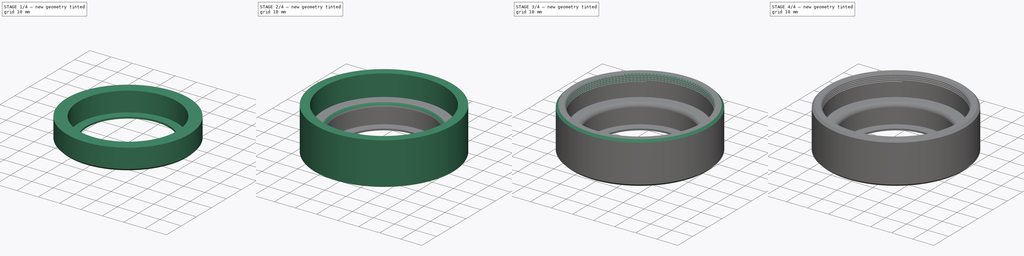
[diagram: build sequence overview — one tinted view per stage of 4, left to right]
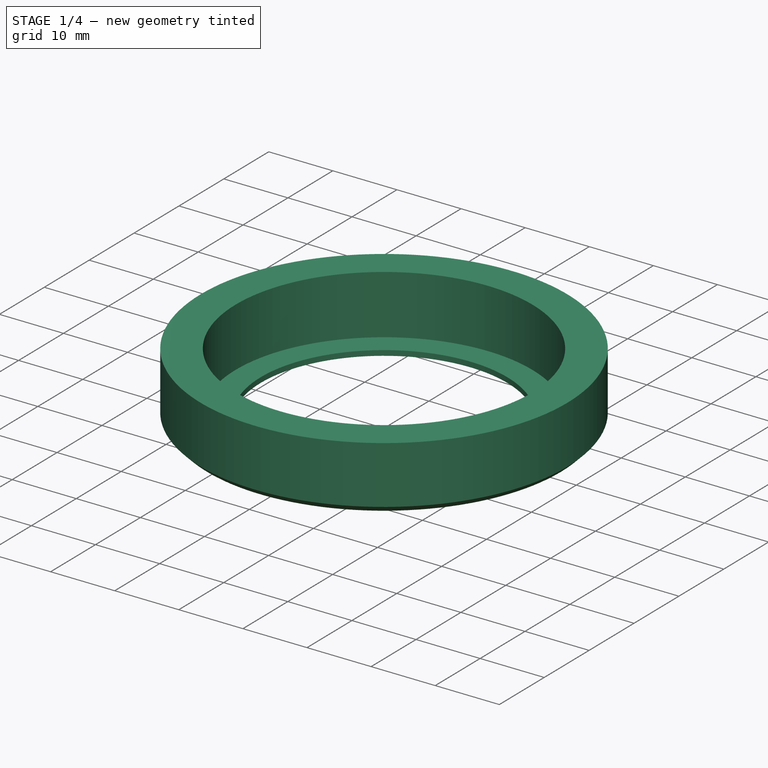
[diagram: stage 1 of 4 — iso view after this stage's code; geometry added in this stage tinted green]
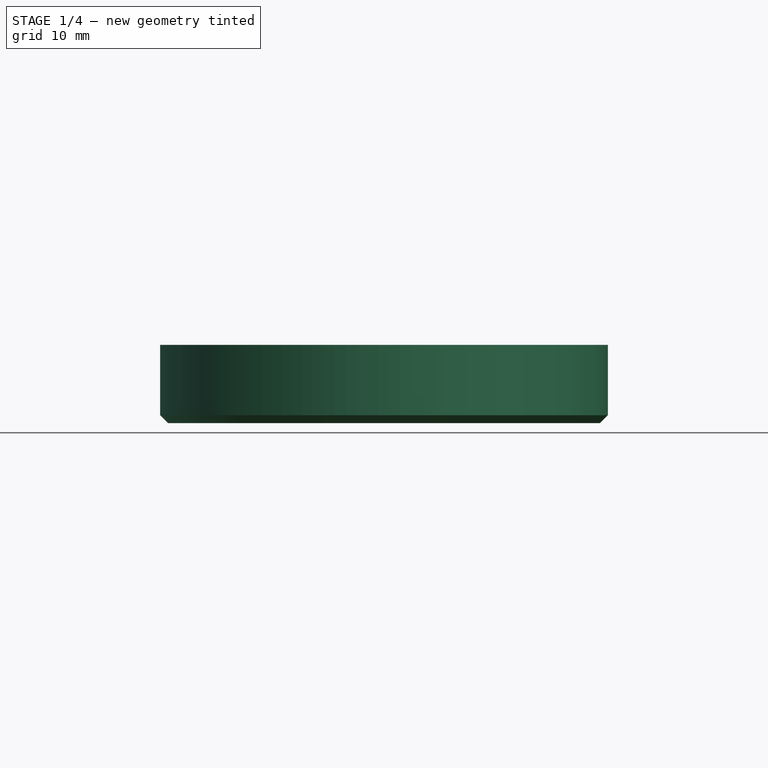
[diagram: stage 1 of 4 — front view after this stage's code; geometry added in this stage tinted green]
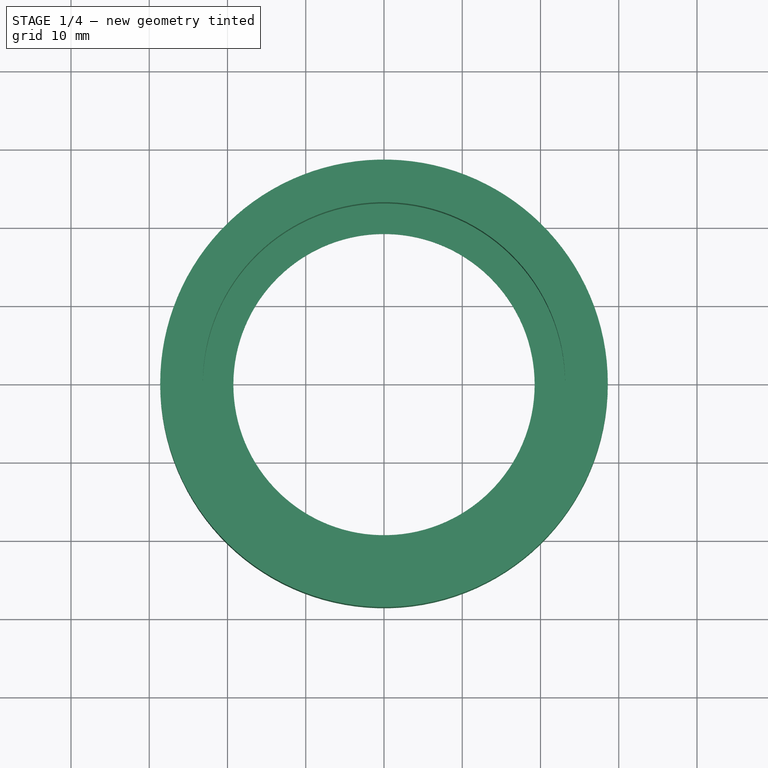
[diagram: stage 1 of 4 — top view after this stage's code; geometry added in this stage tinted green]
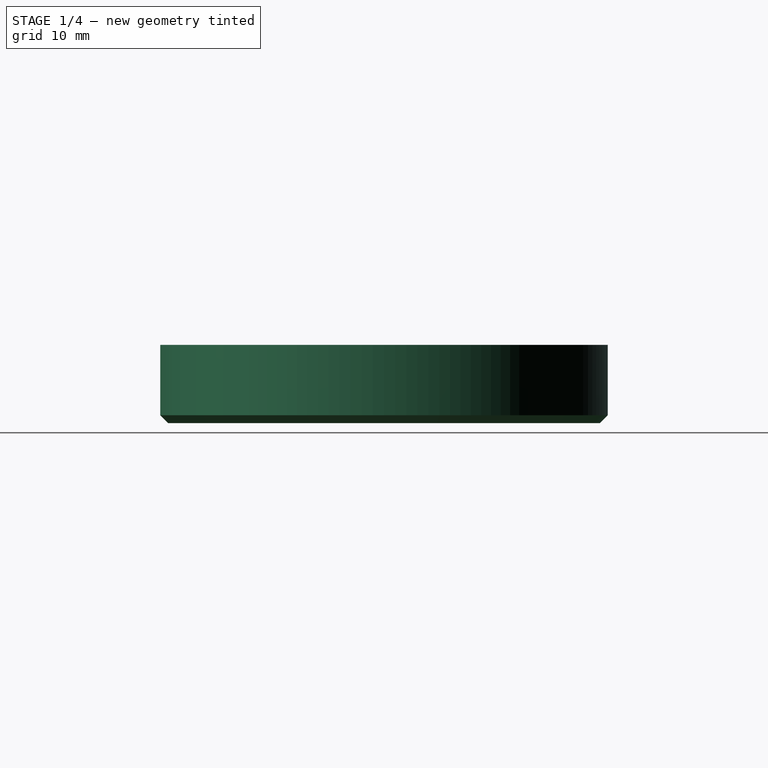
[diagram: stage 1 of 4 — right view after this stage's code; geometry added in this stage tinted green]
FCSTD DOCUMENT  (FreeCAD 2021.1015R24301 +3962 (Git))
Label: EOS2Microscope
License: All rights reserved
LicenseURL: http://en.wikipedia.org/wiki/All_rights_reserved
objects: Sketcher::SketchObject×4, PartDesign::Chamfer×4, PartDesign::Revolution×2, PartDesign::Body×2, PartDesign::SubtractiveHelix×1, PartDesign::Pocket×1, Part::SubShapeBinder×1, PartDesign::Fillet×1
note: 34 computed .brp shape members not serialized (recipe doc carries the construction recipe); baked Part::Feature solids carry a one-line shape summary decoded from their .brp

FEATURE [Part::SubShapeBinder] Import  label="Import(Pocket)"
  BindCopyOnChange = 0
  BindMode = 0
  ClaimChildren = false
  Context = -> Body001 [Import.]
  FillStyle = 0
  Fuse = false
  MakeFace = false
  PartialLoad = false
  Relative = true
  Support = -> [Body[Pocket.]]
  _Version = 7
FEATURE [Sketcher::SketchObject] Sketch004
  ExternalGeometry = -> [Import]
  FullyConstrained = true
  MapMode = 5
  Placement = pos=(0,0,0) rot=(1,0,0;1.5708rad)
  Support = -> [XZ_Plane001]
  expr: Constraints[13] = 38.5 / 2
  expr: Constraints[15] = 46.3 / 2
  sketch-geometry (6):
    g0: LineSegment StartX=19.25 StartY=0 StartZ=0 EndX=19.25 EndY=0.8 EndZ=0
    g1: LineSegment StartX=19.25 StartY=0.8 StartZ=0 EndX=23.15 EndY=0.8 EndZ=0
    g2: LineSegment StartX=23.15 StartY=0.8 StartZ=0 EndX=23.15 EndY=10 EndZ=0
    g3: LineSegment StartX=23.15 StartY=10 StartZ=0 EndX=28.6 EndY=10 EndZ=0
    g4: LineSegment StartX=28.6 StartY=10 StartZ=0 EndX=28.6 EndY=0 EndZ=0
    g5: LineSegment StartX=28.6 StartY=0 StartZ=0 EndX=19.25 EndY=0 EndZ=0
  constraints (18):
    c: PointOnObject(g0,g-3)
    c: Vertical(g0)
    c: Coincident(g1,g0)
    c: Horizontal(g1)
    c: Coincident(g2,g1)
    c: Vertical(g2)
    c: Coincident(g3,g2)
    c: Horizontal(g3)
    c: Coincident(g4,g3)
    c: PointOnObject(g4,g-3)
    c: Vertical(g4)
    c: Coincident(g5,g4)
    c: Coincident(g5,g0)
    c: DistanceX(g-1,g0) = 19.25
    c: DistanceX(g4,g-3) = 0.2
    c: DistanceX(g-1,g1) = 23.15
    c: DistanceY(g0,g0) = 0.8
    c: DistanceY(g4,g4) = 10
FEATURE [PartDesign::Revolution] Revolution001
  Angle = 360
  Axis = (0,-2e-16,1)
  Base = (0,0,0)
  ClaimChildren = false
  Fit = 0
  FitJoin = 0
  InnerFit = 0
  InnerFitJoin = 0
  NewSolid = false
  Placement = pos=(0,0,0) rot=(1,0,0;1.5708rad)
  Profile = -> Sketch004
  ReferenceAxis = -> Sketch004 [V_Axis]
  Reversed = true
  Suppress = false
  _ProfileBasedVersion = 1
FEATURE [PartDesign::Chamfer] Chamfer002
  Angle = 45
  Base = -> Revolution001 [Edge8]
  BaseFeature = -> Revolution001
  ChamferType = 0
  FlipDirection = false
  NewSolid = false
  Placement = pos=(0,0,0) rot=(1,0,0;1.5708rad)
  Size = 1
  Size2 = 1
  SupportTransform = false
  Suppress = false
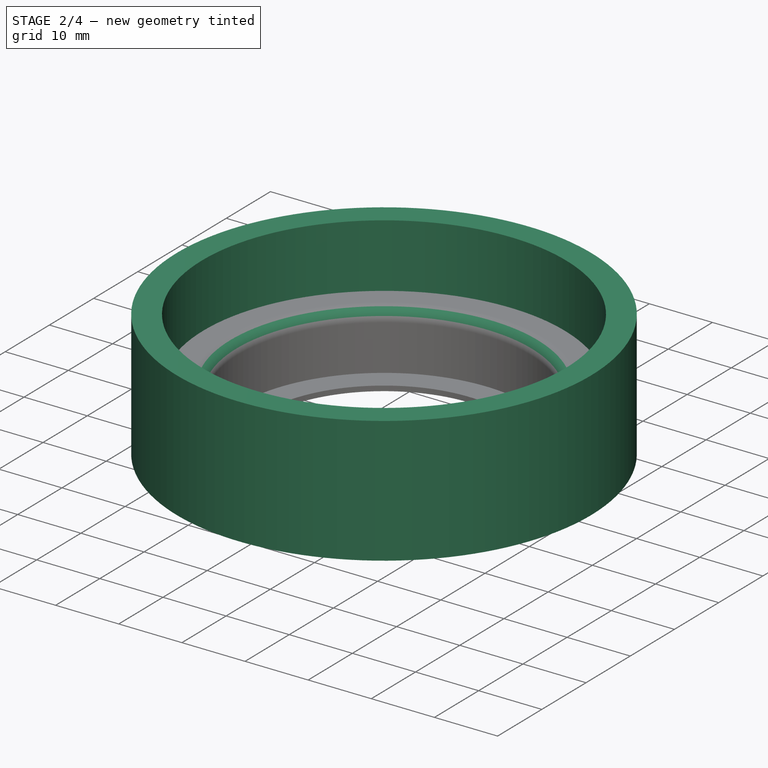
[diagram: stage 2 of 4 — iso view after this stage's code; geometry added in this stage tinted green]
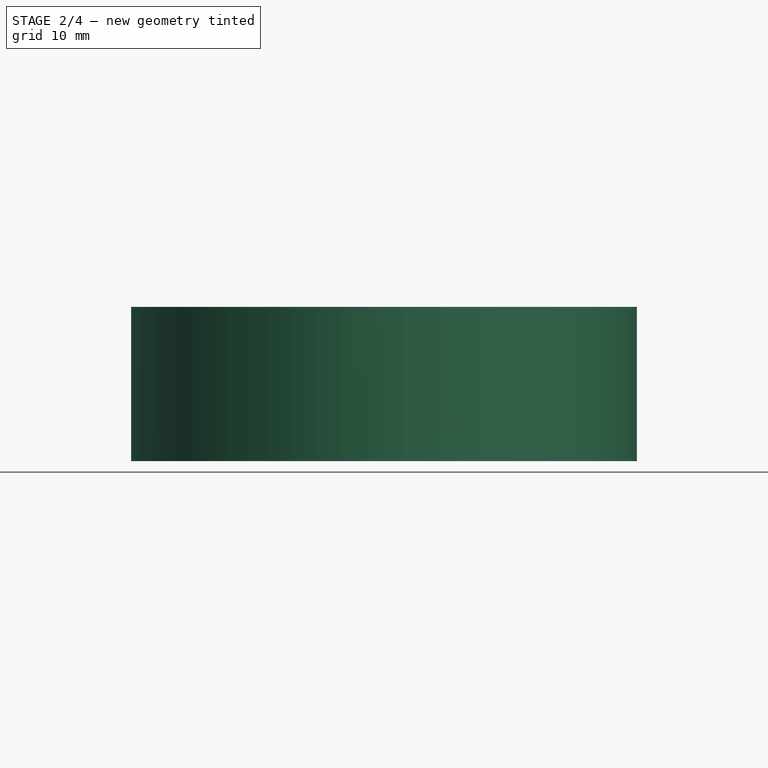
[diagram: stage 2 of 4 — front view after this stage's code; geometry added in this stage tinted green]
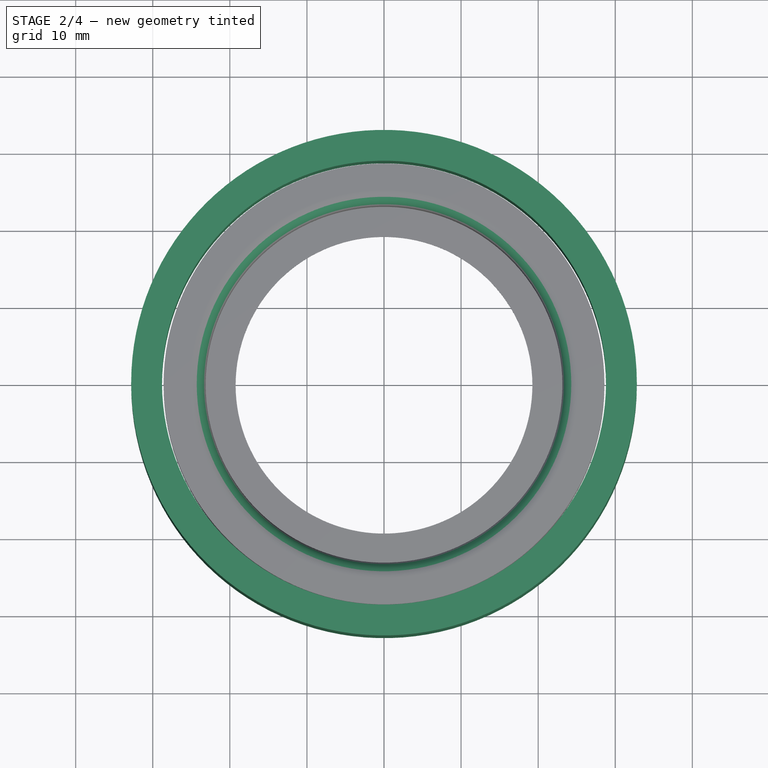
[diagram: stage 2 of 4 — top view after this stage's code; geometry added in this stage tinted green]
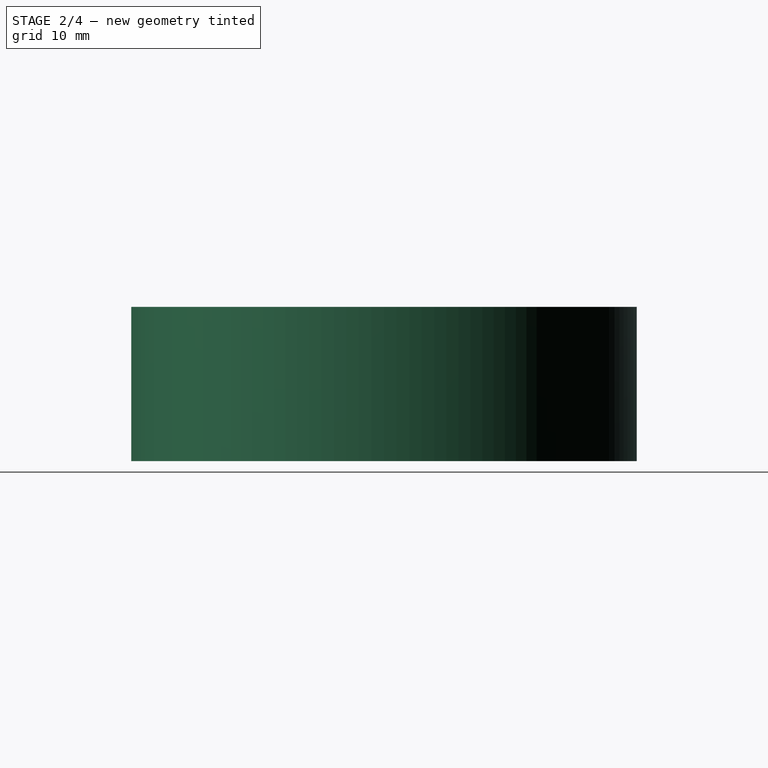
[diagram: stage 2 of 4 — right view after this stage's code; geometry added in this stage tinted green]
FEATURE [Sketcher::SketchObject] Sketch
  FullyConstrained = false
  MapMode = 5
  Placement = pos=(0,0,0) rot=(1,0,0;1.5708rad)
  Support = -> [XZ_Plane]
  expr: Constraints[11] = 57.6 / 2
  expr: Constraints[19] = 38.5 / 2
  expr: Constraints[21] = 46.5 / 2
  sketch-geometry (9):
    g0: LineSegment StartX=28.8 StartY=20 StartZ=0 EndX=28.8 EndY=0 EndZ=0
    g1: LineSegment [constr] StartX=28.8 StartY=10 StartZ=0 EndX=23.25 EndY=10 EndZ=0
    g2: LineSegment [constr] StartX=23.25 StartY=10 StartZ=0 EndX=23.25 EndY=1 EndZ=0
    g3: LineSegment [constr] StartX=23.25 StartY=1 StartZ=0 EndX=19.25 EndY=1 EndZ=0
    g4: LineSegment [constr] StartX=19.25 StartY=1 StartZ=0 EndX=19.25 EndY=0 EndZ=0
    g5: LineSegment [constr] StartX=19.25 StartY=0 StartZ=0 EndX=32.8 EndY=0 EndZ=0
    g6: LineSegment StartX=32.8 StartY=0 StartZ=0 EndX=32.8 EndY=20 EndZ=0
    g7: LineSegment StartX=32.8 StartY=20 StartZ=0 EndX=28.8 EndY=20 EndZ=0
    g8: LineSegment StartX=28.8 StartY=0 StartZ=0 EndX=32.8 EndY=0 EndZ=0
  constraints (26):
    c: Vertical(g0)
    c: Coincident(g2,g1)
    c: Coincident(g3,g2)
    c: Coincident(g4,g3)
    c: Coincident(g5,g4)
    c: Coincident(g6,g5)
    c: Vertical(g6)
    c: Coincident(g7,g6)
    c: Coincident(g7,g0)
    c: Horizontal(g7)
    c: DistanceY(g4,g0) = 20
    c: DistanceX(g-1,g0) = 28.8
    c: DistanceX(g7,g7) = 4
    c: Horizontal(g5)
    c: Horizontal(g1)
    c: Vertical(g4)
    c: Horizontal(g3)
    c: Vertical(g2)
    c: Horizontal(g4,g-1)
    c: DistanceX(g-1,g4) = 19.25
    c: DistanceY(g4,g4) = 1
    c: DistanceX(g-1,g1) = 23.25
    c: PointOnObject(g8,g5)
    c: Coincident(g8,g6)
    c: Coincident(g0,g8)
    c: DistanceY(g1) = 10
FEATURE [PartDesign::Revolution] Revolution
  Angle = 360
  Axis = (0,-2e-16,1)
  Base = (0,0,0)
  ClaimChildren = false
  Fit = 0
  FitJoin = 0
  InnerFit = 0
  InnerFitJoin = 0
  NewSolid = false
  Placement = pos=(0,0,0) rot=(1,0,0;1.5708rad)
  Profile = -> Sketch
  ReferenceAxis = -> Sketch [V_Axis]
  Reversed = true
  Suppress = false
  _ProfileBasedVersion = 1
FEATURE [PartDesign::Body] Body
  AutoGroupSolids = false
  ExportMode = 0
  Group = -> [Sketch,Revolution,Chamfer,Sketch001,SubtractiveHelix,Chamfer001,Sketch003,Pocket,Chamfer003]
  Origin = -> Origin
  Tip = -> Chamfer003
  _ExportChildren = -> [Revolution,Chamfer,SubtractiveHelix,Chamfer001,Pocket,Chamfer003]
  _GroupVersion = 1
FEATURE [PartDesign::Fillet] Fillet
  Base = -> Chamfer002 [Edge6]
  BaseFeature = -> Chamfer002
  NewSolid = false
  Placement = pos=(0,0,0) rot=(1,0,0;1.5708rad)
  Radius = 2
  SupportTransform = false
  Suppress = false
FEATURE [PartDesign::Body] Body001
  AutoGroupSolids = false
  ExportMode = 0
  Group = -> [Sketch004,Import,Revolution001,Chamfer002,Fillet]
  Origin = -> Origin001
  Tip = -> Fillet
  _ExportChildren = -> [Import,Revolution001,Chamfer002,Fillet]
  _GroupVersion = 1
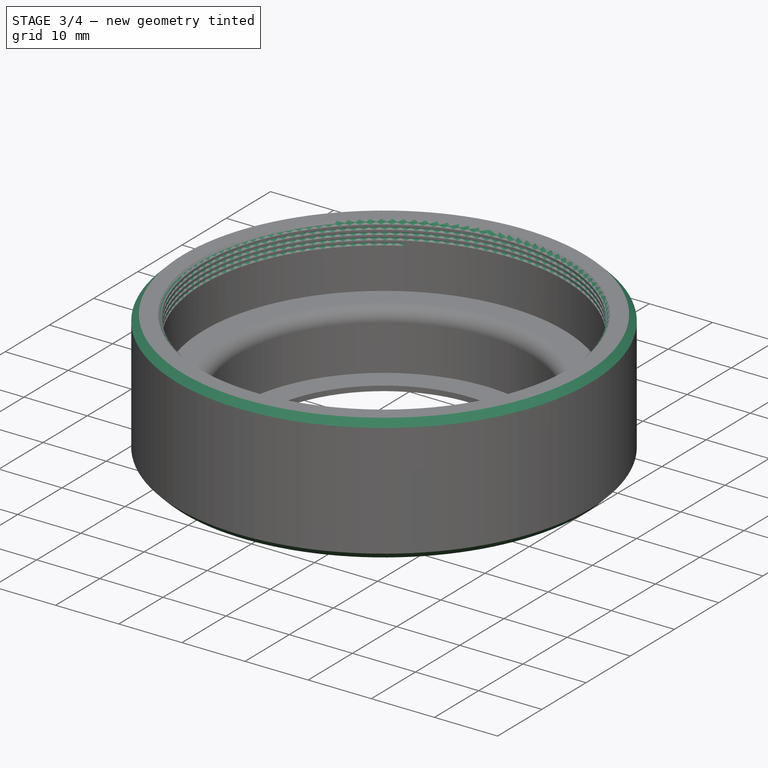
[diagram: stage 3 of 4 — iso view after this stage's code; geometry added in this stage tinted green]
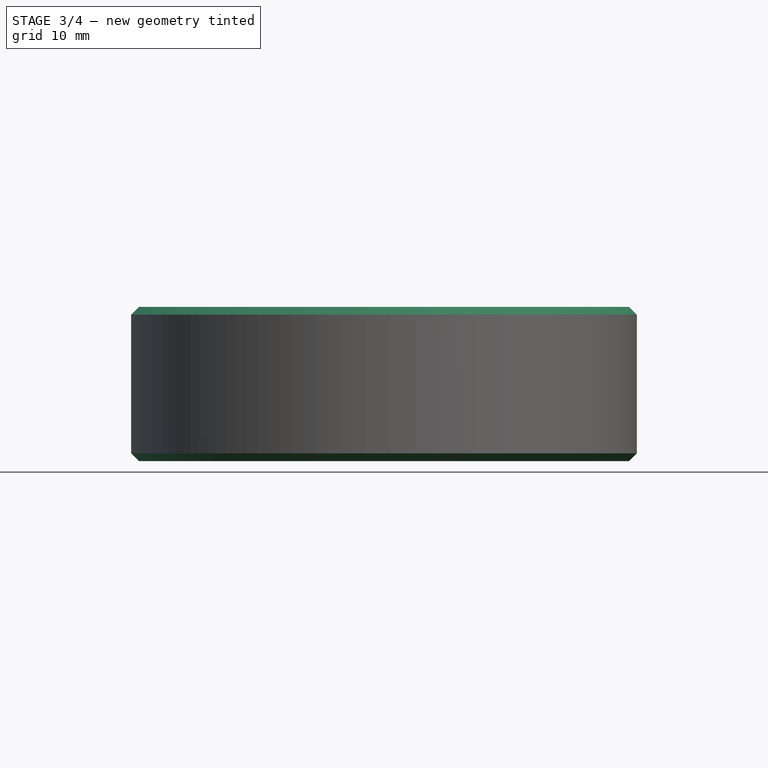
[diagram: stage 3 of 4 — front view after this stage's code; geometry added in this stage tinted green]
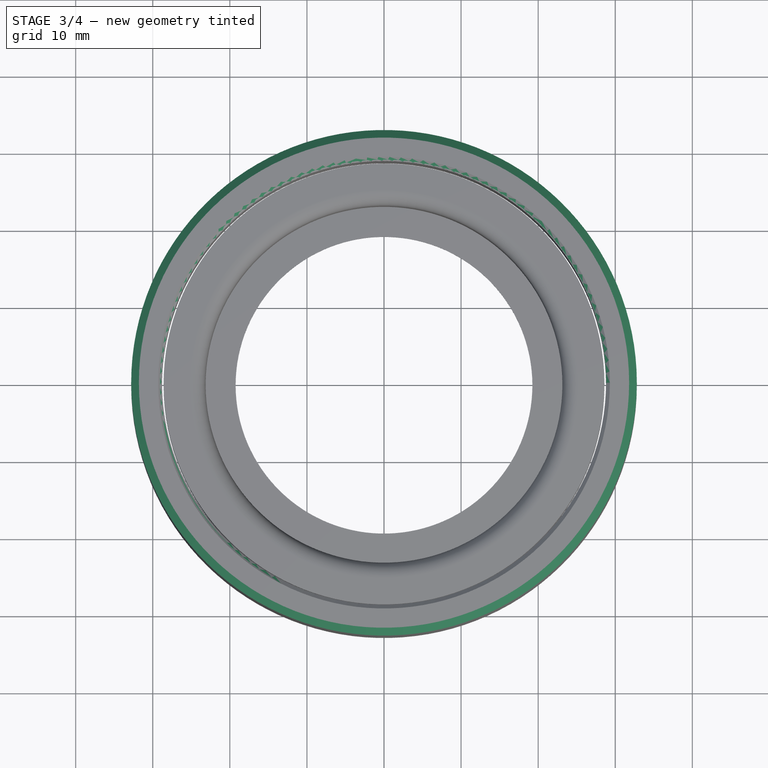
[diagram: stage 3 of 4 — top view after this stage's code; geometry added in this stage tinted green]
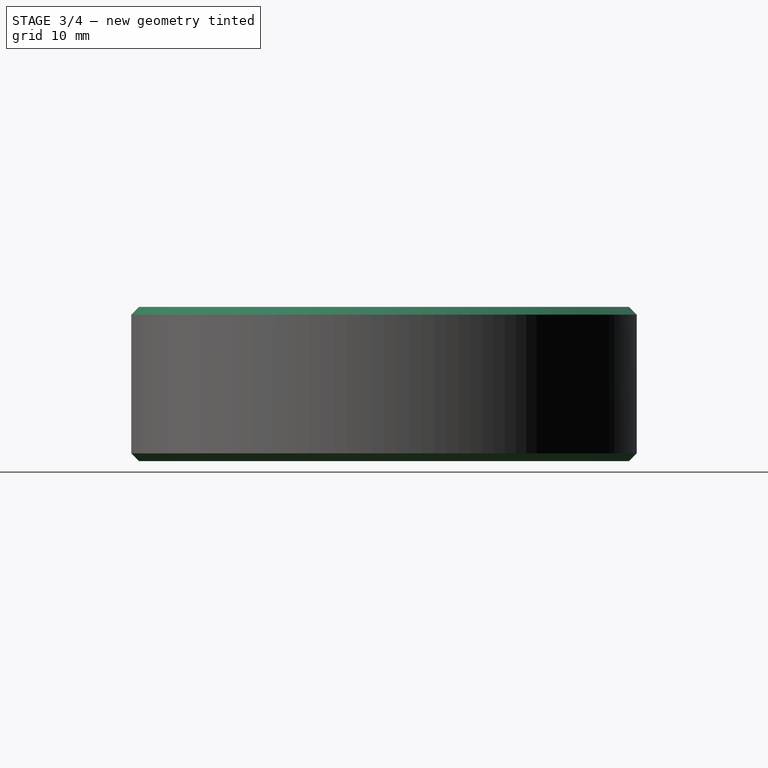
[diagram: stage 3 of 4 — right view after this stage's code; geometry added in this stage tinted green]
FEATURE [Sketcher::SketchObject] Sketch001
  ExternalGeometry = -> [Revolution]
  FullyConstrained = true
  MapMode = 5
  Placement = pos=(0,0,0) rot=(1,0,0;1.5708rad)
  Support = -> [XZ_Plane]
  expr: Constraints[6] = 58.3 / 2
  sketch-geometry (3):
    g0: LineSegment StartX=28.6 StartY=20.4175 StartZ=0 EndX=29.15 EndY=20.1 EndZ=0
    g1: LineSegment StartX=29.15 StartY=20.1 StartZ=0 EndX=28.6 EndY=19.7825 EndZ=0
    g2: LineSegment StartX=28.6 StartY=19.7825 StartZ=0 EndX=28.6 EndY=20.4175 EndZ=0
  constraints (9):
    c: Coincident(g1,g0)
    c: Coincident(g2,g1)
    c: Coincident(g2,g0)
    c: Vertical(g2)
    c: Equal(g1,g0)
    c: Angle(g0,g1) = 1.0472
    c: DistanceX(g-1,g0) = 29.15
    c: DistanceY(g-3,g0) = 0.1
    c: DistanceX(g0,g-3) = 0.2
FEATURE [PartDesign::Chamfer] Chamfer
  Angle = 45
  Base = -> Revolution [Edge1]
  BaseFeature = -> Revolution
  ChamferType = 0
  FlipDirection = false
  NewSolid = false
  Placement = pos=(0,0,0) rot=(1,0,0;1.5708rad)
  Size = 0.5
  Size2 = 1
  SupportTransform = false
  Suppress = false
FEATURE [PartDesign::SubtractiveHelix] SubtractiveHelix
  Angle = 0
  Axis = (0,-2e-16,1)
  Base = (0,0,0)
  BaseFeature = -> Chamfer
  ClaimChildren = false
  Fit = 0
  FitJoin = 0
  HasBeenEdited = true
  Height = 3.5
  InnerFit = 0
  InnerFitJoin = 0
  LeftHanded = false
  Mode = 0
  NewSolid = false
  Outside = false
  Pitch = 0.75
  Placement = pos=(0,0,0) rot=(1,0,0;1.5708rad)
  Profile = -> Sketch001
  ReferenceAxis = -> Sketch001 [V_Axis]
  Reversed = true
  Suppress = false
  Turns = 3
  _ProfileBasedVersion = 1
FEATURE [PartDesign::Chamfer] Chamfer001
  Angle = 45
  Base = -> SubtractiveHelix [Edge26,Edge19]
  BaseFeature = -> SubtractiveHelix
  ChamferType = 0
  FlipDirection = false
  NewSolid = false
  Placement = pos=(0,0,0) rot=(1,0,0;1.5708rad)
  Refine = true
  Size = 1
  Size2 = 1
  SupportTransform = false
  Suppress = false
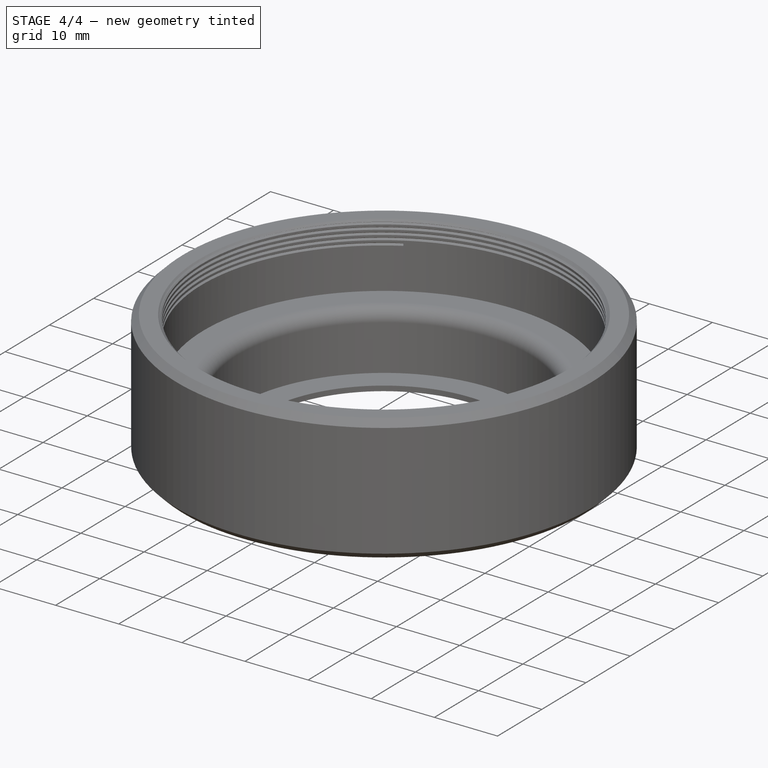
[diagram: stage 4 of 4 — iso view after this stage's code; geometry added in this stage tinted green]
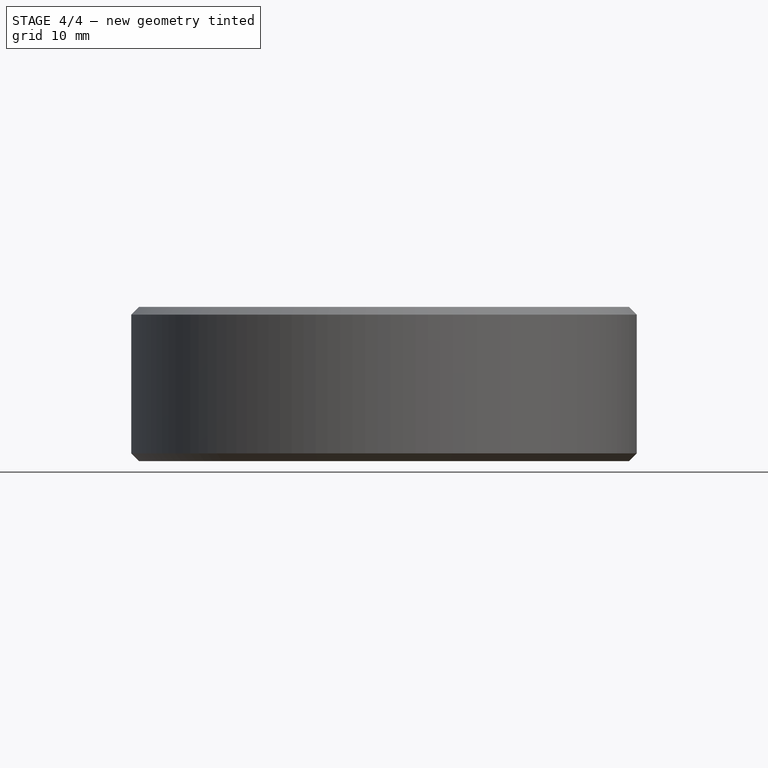
[diagram: stage 4 of 4 — front view after this stage's code; geometry added in this stage tinted green]
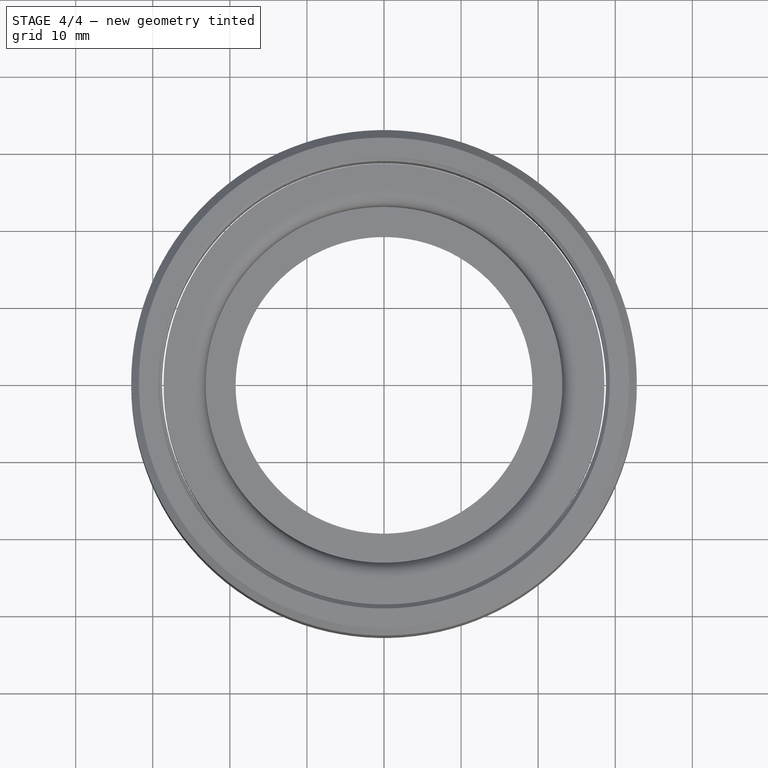
[diagram: stage 4 of 4 — top view after this stage's code; geometry added in this stage tinted green]
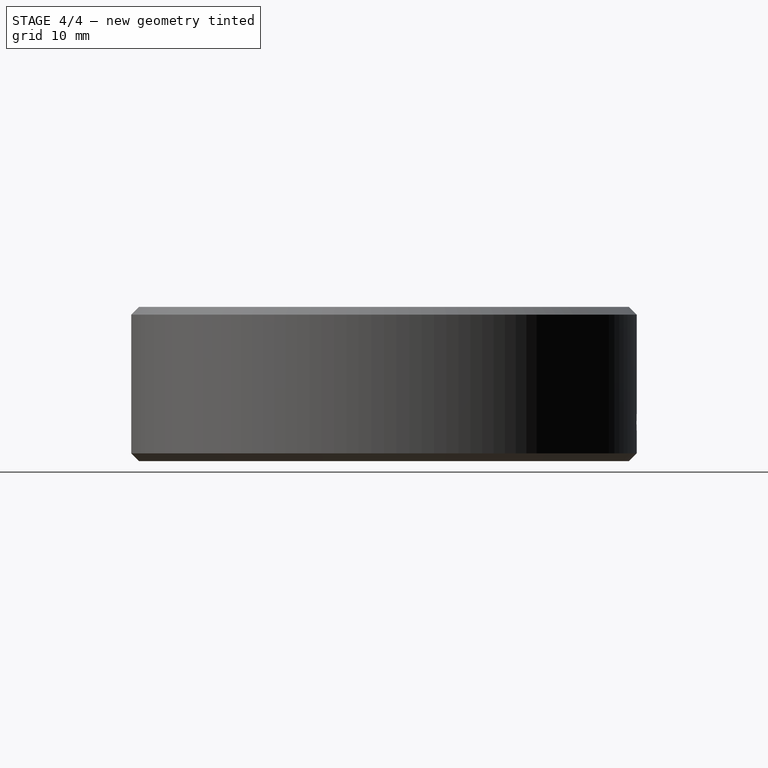
[diagram: stage 4 of 4 — right view after this stage's code; geometry added in this stage tinted green]
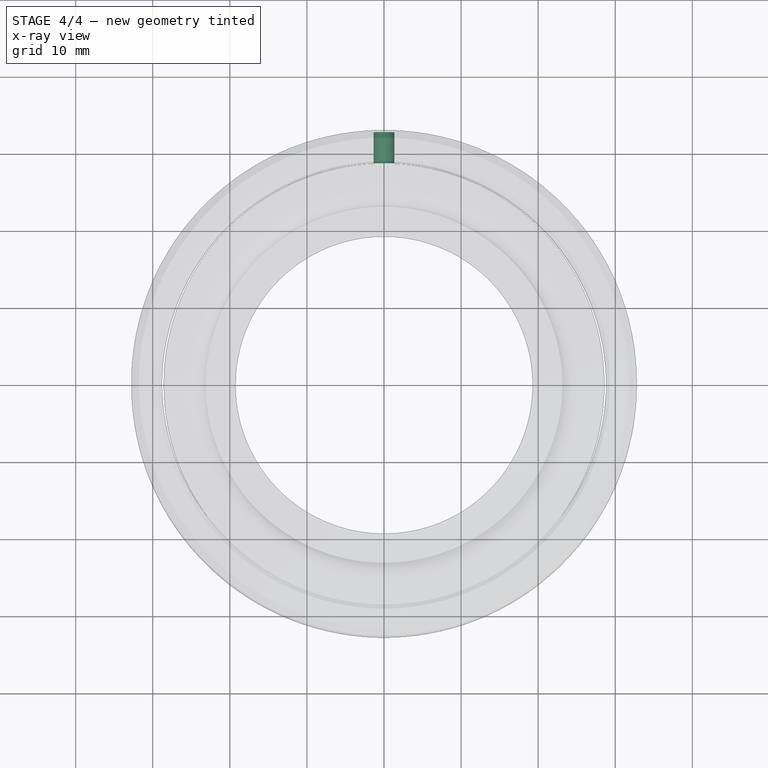
[diagram: stage 4 of 4 — x-ray composite at the top view; earlier geometry ghosted, this stage's added geometry solid]
FEATURE [Sketcher::SketchObject] Sketch003
  FullyConstrained = true
  MapMode = 5
  Placement = pos=(0,0,0) rot=(1,0,0;1.5708rad)
  Support = -> [XZ_Plane]
  sketch-geometry (1):
    g0: Circle CenterX=0 CenterY=5 CenterZ=0 NormalX=0 NormalY=0 NormalZ=1 AngleXU=0 Radius=1.35
  constraints (3):
    c: PointOnObject(g0,g-2)
    c: Diameter(g0) = 2.7
    c: DistanceY(g-1,g0) = 5
FEATURE [PartDesign::Pocket] Pocket
  BaseFeature = -> Chamfer001
  ClaimChildren = false
  Fit = 0
  FitJoin = 0
  InnerFit = 0
  InnerFitJoin = 0
  InnerTaperAngle = 0
  InnerTaperAngleRev = 0
  Length = 5
  Length2 = 100
  Linearize = true
  NewSolid = false
  Placement = pos=(0,0,0) rot=(1,0,0;1.5708rad)
  Profile = -> Sketch003
  Suppress = false
  Type = 1
  _ProfileBasedVersion = 1
FEATURE [PartDesign::Chamfer] Chamfer003
  Angle = 45
  Base = -> Pocket [Edge31]
  BaseFeature = -> Pocket
  ChamferType = 0
  FlipDirection = false
  NewSolid = false
  Placement = pos=(0,0,0) rot=(1,0,0;1.5708rad)
  Size = 0.5
  Size2 = 1
  SupportTransform = false
  Suppress = false
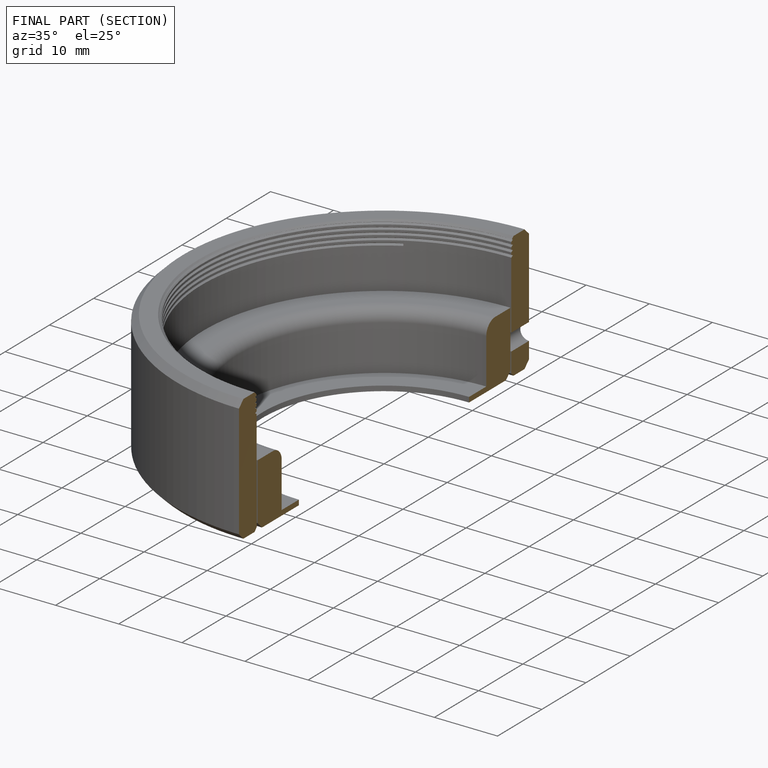
[diagram: finished part — half-section view (interior)]
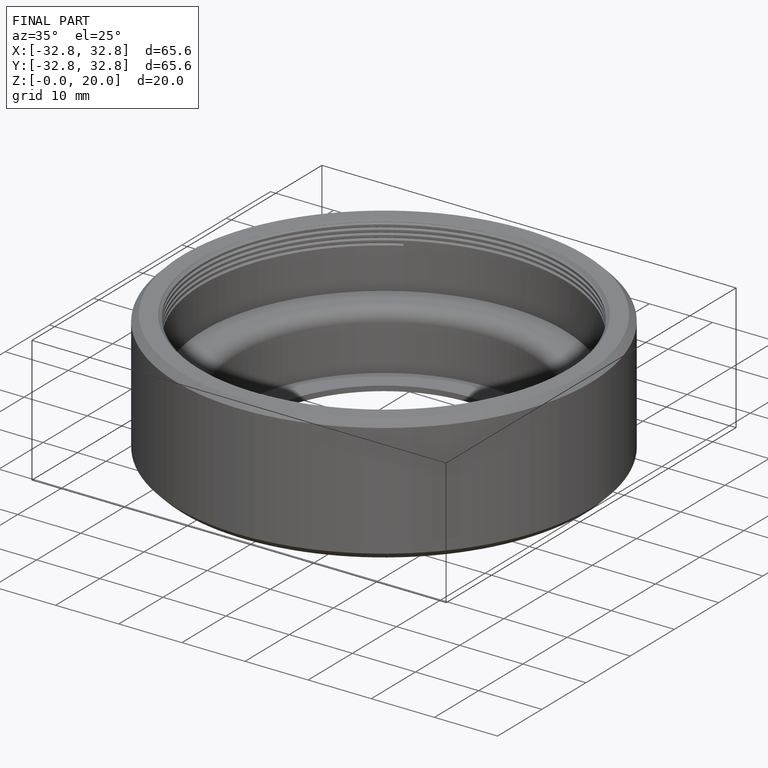
[diagram: finished part — iso view with bounding-box wireframe]
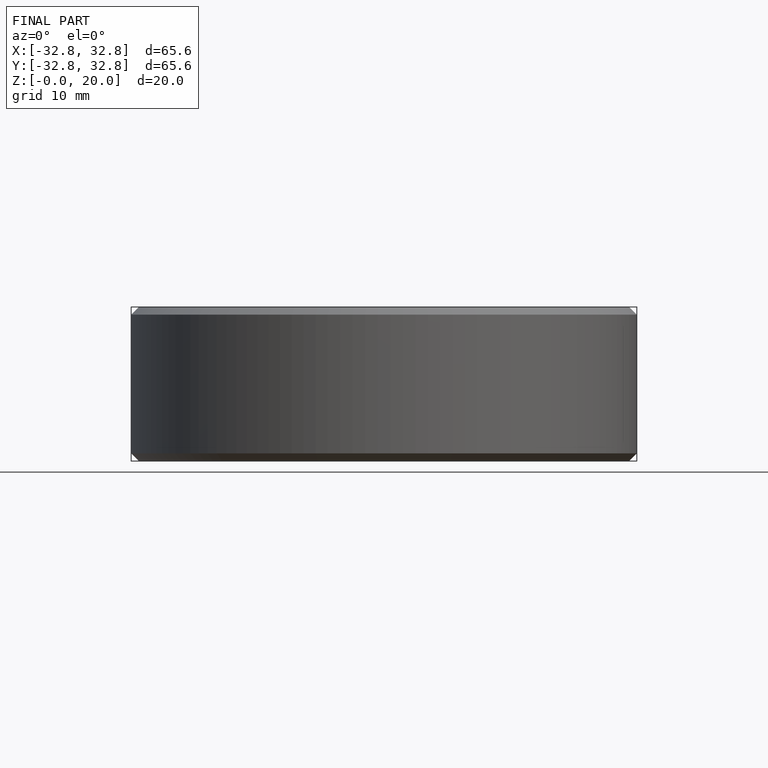
[diagram: finished part — front view with bounding-box wireframe]
